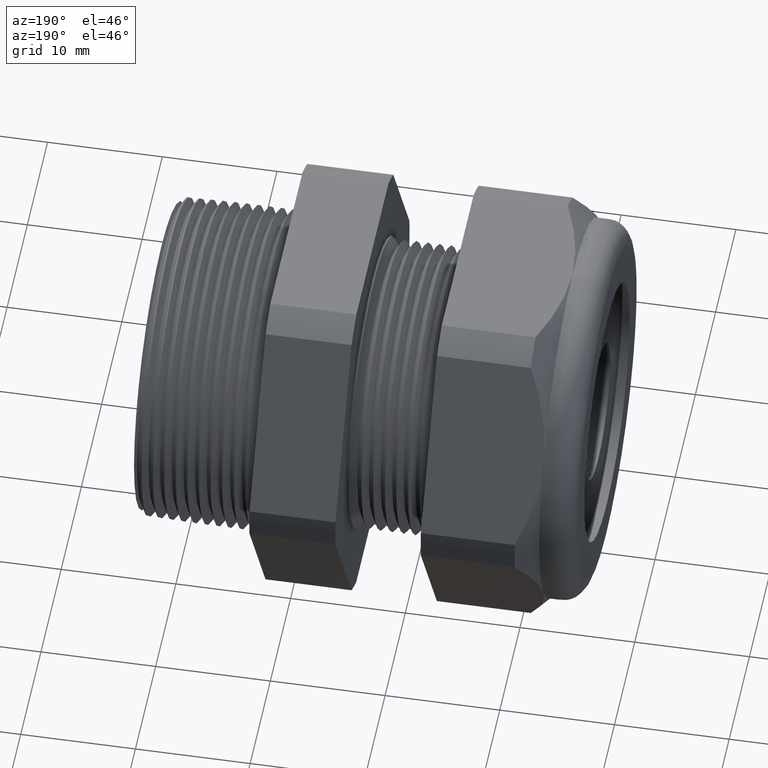
[diagram: clean part render]
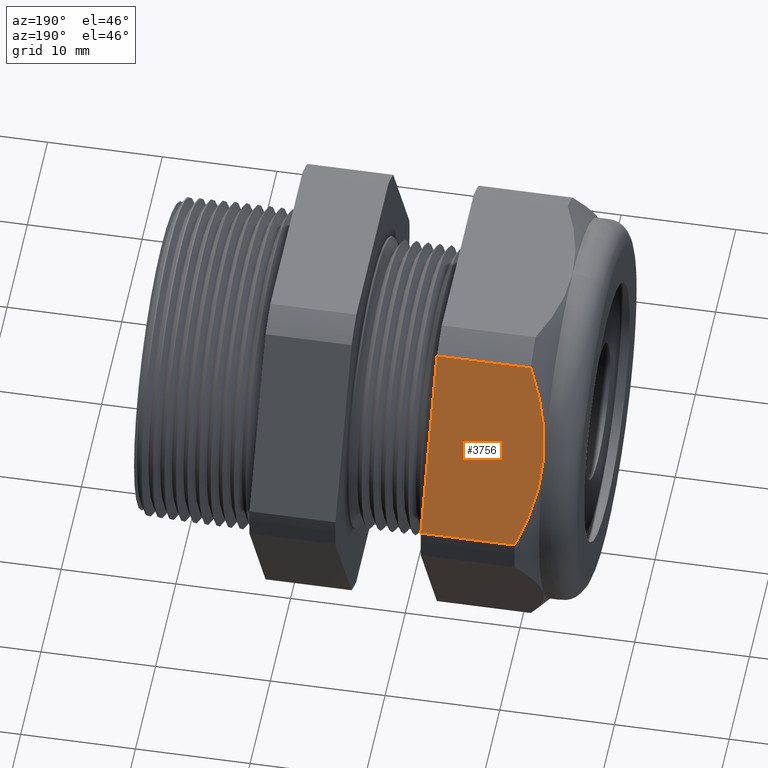
[diagram: same view with one face highlighted and labeled with its STEP entity id]
A machine part, auxiliary view. The second image highlights one B-rep face of the part: STEP entity #3756.
In plain terms, the highlighted planar face has unit normal (0, 0.866, 0.5).
Its self-contained STEP definition (entity closure, byte-faithful):
#73 = VERTEX_POINT ( 'NONE', #434 ) ;
#80 = ORIENTED_EDGE ( 'NONE', *, *, #81, .T. ) ;
#81 = EDGE_CURVE ( 'NONE', #73, #152, #422, .T. ) ;
#152 = VERTEX_POINT ( 'NONE', #588 ) ;
#419 = CARTESIAN_POINT ( 'NONE',  ( -1.259883036713413100, 0.6692072927766706800, 0.1408989681151868200 ) ) ;
#420 = CARTESIAN_POINT ( 'NONE',  ( -1.242011327000794900, 0.6945827664818918800, 0.09694735839161498800 ) ) ;
#421 = CARTESIAN_POINT ( 'NONE',  ( -1.220389763779527600, 0.7194909755756818700, 0.05380507471562176500 ) ) ;
#422 = B_SPLINE_CURVE_WITH_KNOTS ( 'NONE', 3,
 ( #421, #420, #419, #477, #476, #475, #474, #473, #472, #471 ),
 .UNSPECIFIED., .F., .F.,
 ( 4, 2, 2, 2, 4 ),
 ( 2.483249165346883100E-007, 0.004082012451910148500, 0.006122894515406954300, 0.007143335547155359000, 0.008163776578903761100 ),
 .UNSPECIFIED. ) ;
#434 = CARTESIAN_POINT ( 'NONE',  ( -1.220389763779527600, 0.7194909755756818700, 0.05380507471562176500 ) ) ;
#471 = CARTESIAN_POINT ( 'NONE',  ( -1.291889763779527500, 0.5629165124598853900, 0.3250000000000004000 ) ) ;
#472 = CARTESIAN_POINT ( 'NONE',  ( -1.291889763779527500, 0.5696940647084651800, 0.3132609351545072600 ) ) ;
#473 = CARTESIAN_POINT ( 'NONE',  ( -1.291460853679630600, 0.5765336067434357900, 0.3014145008494351100 ) ) ;
#474 = CARTESIAN_POINT ( 'NONE',  ( -1.289757307482530800, 0.5901225526399742600, 0.2778777561353260000 ) ) ;
#475 = CARTESIAN_POINT ( 'NONE',  ( -1.288488242340940900, 0.5968650273424733800, 0.2661994473818495300 ) ) ;
#476 = CARTESIAN_POINT ( 'NONE',  ( -1.283504729739888100, 0.6169458720203933000, 0.2314184041407931500 ) ) ;
#477 = CARTESIAN_POINT ( 'NONE',  ( -1.278613598462209100, 0.6301376168794387000, 0.2085696318044406300 ) ) ;
#588 = CARTESIAN_POINT ( 'NONE',  ( -1.291889763779527500, 0.5629165124598853900, 0.3250000000000004000 ) ) ;
#2150 = CARTESIAN_POINT ( 'NONE',  ( -1.220389763779527600, 0.4063420493440889100, 0.5961949252843789000 ) ) ;
#2151 = DIRECTION ( 'NONE',  ( -1.000000000000000000, 0.0000000000000000000, 0.0000000000000000000 ) ) ;
#2152 = VECTOR ( 'NONE', #2151, 39.37007874015748100 ) ;
#2153 = CARTESIAN_POINT ( 'NONE',  ( 0.1200000000000000900, 0.7194909755756818700, 0.05380507471562175100 ) ) ;
#2154 = LINE ( 'NONE', #2153, #2152 ) ;
#2355 = CARTESIAN_POINT ( 'NONE',  ( -1.220389763779527600, 0.4063420493440889100, 0.5961949252843789000 ) ) ;
#2356 = CARTESIAN_POINT ( 'NONE',  ( -1.242038095775945200, 0.4312810962751706900, 0.5529992289074002800 ) ) ;
#2357 = CARTESIAN_POINT ( 'NONE',  ( -1.260161853850736600, 0.4570573558384623500, 0.5083534377146961000 ) ) ;
#2358 = CARTESIAN_POINT ( 'NONE',  ( -1.285050007405225600, 0.5092737903524786600, 0.4179119201463271600 ) ) ;
#2359 = CARTESIAN_POINT ( 'NONE',  ( -1.291889763779527200, 0.5358248930679737600, 0.3719240612461093800 ) ) ;
#2360 = CARTESIAN_POINT ( 'NONE',  ( -1.291889763779527500, 0.5629165124598853900, 0.3250000000000004000 ) ) ;
#2363 = B_SPLINE_CURVE_WITH_KNOTS ( 'NONE', 3,
 ( #2360, #2359, #2358, #2357, #2356, #2355 ),
 .UNSPECIFIED., .F., .F.,
 ( 4, 2, 4 ),
 ( 0.008163776578903761100, 0.01224274182034616700, 0.01632170706178857200 ),
 .UNSPECIFIED. ) ;
#2386 = CARTESIAN_POINT ( 'NONE',  ( -0.8981889763779525900, 0.7194909755756818700, 0.05380507471562175100 ) ) ;
#2405 = DIRECTION ( 'NONE',  ( 0.0000000000000000000, -0.5000000000000003300, 0.8660254037844383700 ) ) ;
#2406 = VECTOR ( 'NONE', #2405, 39.37007874015748100 ) ;
#2407 = CARTESIAN_POINT ( 'NONE',  ( -0.8981889763779525900, 0.6877915124598854600, 0.1087101554048367400 ) ) ;
#2408 = LINE ( 'NONE', #2407, #2406 ) ;
#2418 = DIRECTION ( 'NONE',  ( 0.0000000000000000000, -0.5000000000000003300, 0.8660254037844383700 ) ) ;
#2419 = DIRECTION ( 'NONE',  ( 0.0000000000000000000, 0.8660254037844384900, 0.5000000000000004400 ) ) ;
#2420 = CARTESIAN_POINT ( 'NONE',  ( 0.1200000000000000900, 0.4063420493440888500, 0.5961949252843789000 ) ) ;
#2421 = AXIS2_PLACEMENT_3D ( 'NONE', #2420, #2419, #2418 ) ;
#2422 = PLANE ( 'NONE',  #2421 ) ;
#2425 = FACE_OUTER_BOUND ( 'NONE', #3605, .T. ) ;
#2454 = CARTESIAN_POINT ( 'NONE',  ( -0.8981889763779525900, 0.4063420493440889100, 0.5961949252843789000 ) ) ;
#2460 = DIRECTION ( 'NONE',  ( -1.000000000000000000, 0.0000000000000000000, 0.0000000000000000000 ) ) ;
#2461 = VECTOR ( 'NONE', #2460, 39.37007874015748100 ) ;
#2462 = CARTESIAN_POINT ( 'NONE',  ( 0.1200000000000000900, 0.4063420493440889100, 0.5961949252843789000 ) ) ;
#2463 = LINE ( 'NONE', #2462, #2461 ) ;
#3605 = EDGE_LOOP ( 'NONE', ( #3772, #80, #3716, #3770, #3774 ) ) ;
#3619 = EDGE_CURVE ( 'NONE', #3747, #73, #2154, .T. ) ;
#3620 = VERTEX_POINT ( 'NONE', #2150 ) ;
#3716 = ORIENTED_EDGE ( 'NONE', *, *, #3725, .T. ) ;
#3725 = EDGE_CURVE ( 'NONE', #152, #3620, #2363, .T. ) ;
#3736 = EDGE_CURVE ( 'NONE', #3747, #3775, #2408, .T. ) ;
#3747 = VERTEX_POINT ( 'NONE', #2386 ) ;
#3756 = ADVANCED_FACE ( 'NONE', ( #2425 ), #2422, .T. ) ;
#3770 = ORIENTED_EDGE ( 'NONE', *, *, #3771, .F. ) ;
#3771 = EDGE_CURVE ( 'NONE', #3775, #3620, #2463, .T. ) ;
#3772 = ORIENTED_EDGE ( 'NONE', *, *, #3619, .T. ) ;
#3774 = ORIENTED_EDGE ( 'NONE', *, *, #3736, .F. ) ;
#3775 = VERTEX_POINT ( 'NONE', #2454 ) ;